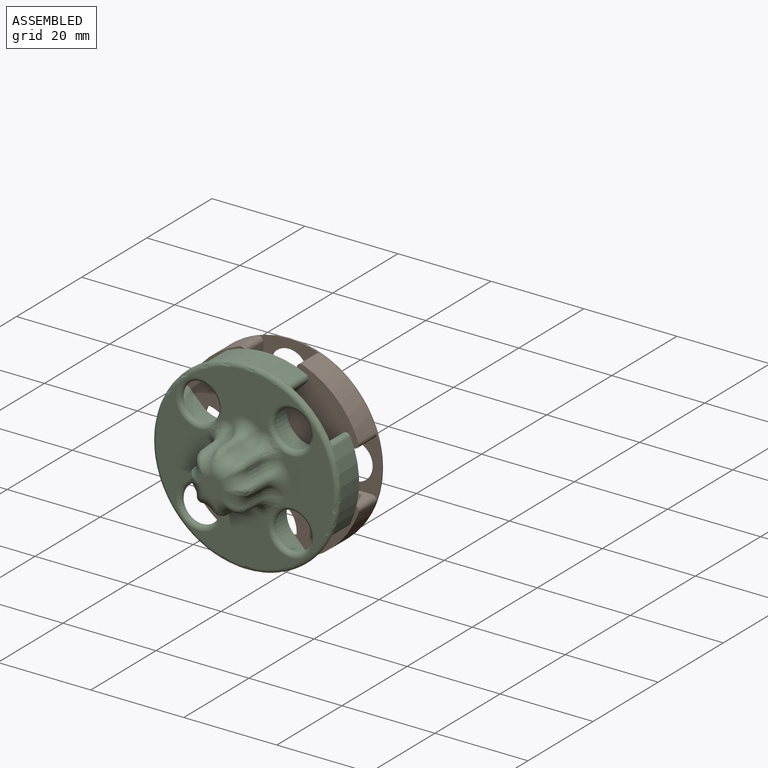
[diagram: assembled view]
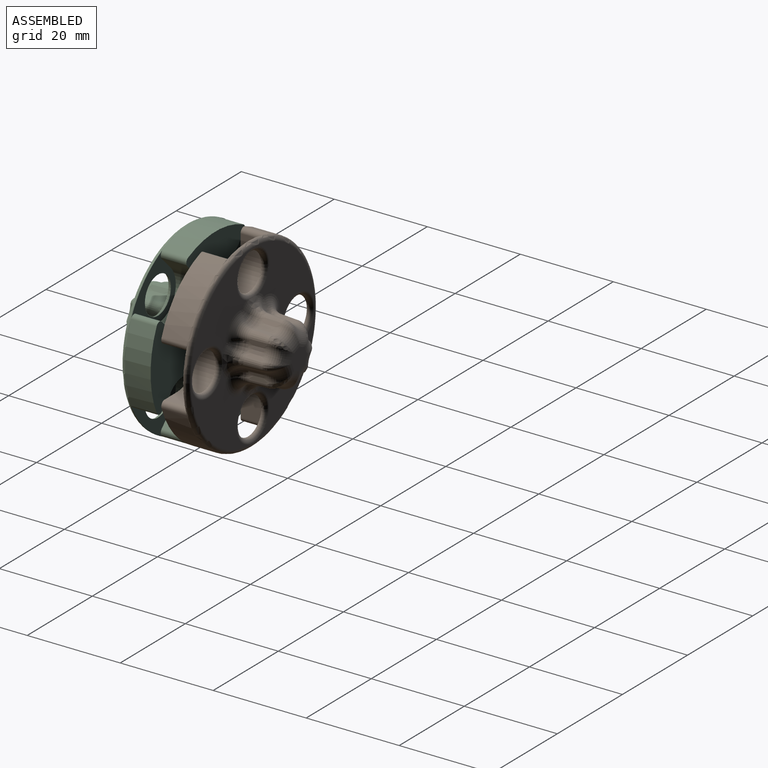
[diagram: assembled view, second angle]
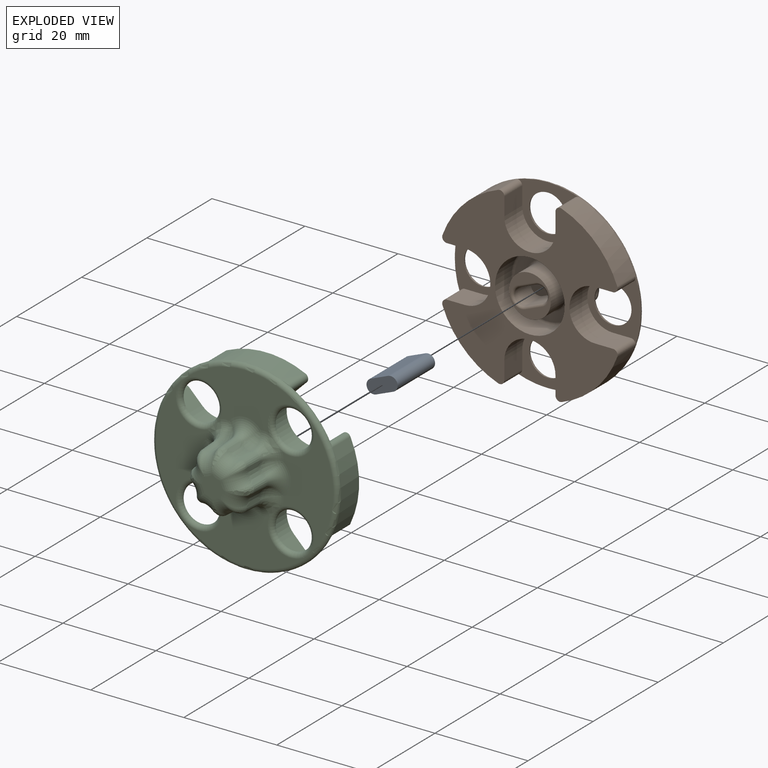
[diagram: exploded view]
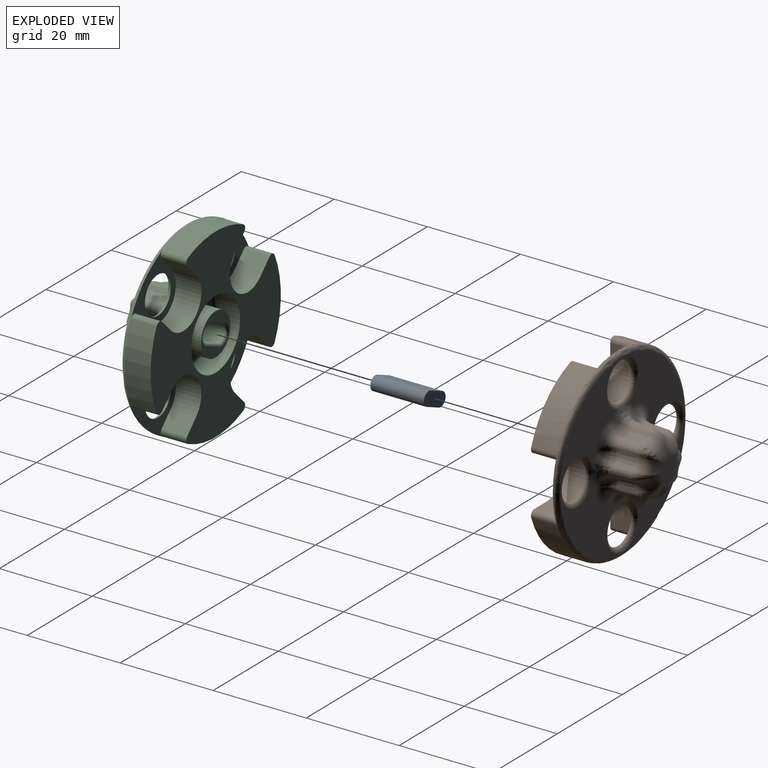
[diagram: exploded view, second angle]
ASSEMBLY  parts=3 mates=3
PART A: 6 faces, bbox 4.5x11.5x6.7 mm
  f0: plane 6.7x4.53mm, normal (0,-1,0), area 19.1mm2, adj f1,f2,f3,f4
  f1: plane 11.5x3.7mm, normal (-0.92,0,0.38), area 46mm2, adj f0,f2,f3,f5
  f2: cylinder r=1.5mm len=11.5mm, axis (0,1,0), area 54.2mm2, adj f0,f1,f4,f5
  f3: cylinder r=1.5mm len=11.5mm, axis (0,1,0), area 54.2mm2, adj f0,f1,f4,f5
  f4: plane 11.5x3.7mm, normal (0.92,0,-0.38), area 46mm2, adj f0,f2,f3,f5
  f5: plane 6.7x4.53mm, normal (0,1,0), area 19.1mm2, adj f1,f2,f3,f4
PART B: 109 faces, bbox 43.3x16.5x43.3 mm
  f0: plane 38.02x38.02mm, normal (0,-1,0), area 544mm2, adj f1,f48,f49,f50,f96,f97,f98,f99
  f1: torus R=4.39mm, axis (0,-1,0), area 5.2mm2, adj f0,f2,f46,f47
  f2: bspline ~3.03x2.86mm, area 5.2mm2, adj f1,f3,f48
  f3: cone r=2.36mm half-angle=3deg, axis (0,-1,0), area 11.4mm2, adj f2,f4,f45,f46
  f4: cone r=1.55mm half-angle=3deg, axis (0,1,0), area 9.6mm2, adj f3,f5,f43,f48
  f5: bspline ~3.38x3.37mm, area 4.6mm2, adj f4,f6,f45
  f6: torus R=6.21mm, axis (0,-1,0), area 14mm2, adj f5,f7,f42,f43
  f7: plane 4.83x4.83mm, normal (0,-1,0), area 15.8mm2, adj f6,f8,f36,f37,f38,f39,f41,f45
  f8: torus R=6.21mm, axis (0,-1,0), area 14mm2, adj f7,f9,f18,f19,f35
  f9: bspline ~3.02x2.67mm, area 3.8mm2, adj f8,f10,f41
  f10: cone r=1.55mm half-angle=3deg, axis (0,1,0), area 9.6mm2, adj f9,f11,f17,f19,f102,f104
  f11: cone r=2.36mm half-angle=3deg, axis (0,-1,0), area 11.4mm2, adj f10,f12,f13,f41
  f12: bspline ~3.03x2.86mm, area 5.2mm2, adj f11,f104,f105
  f13: cone r=1.55mm half-angle=3deg, axis (0,1,0), area 9.6mm2, adj f11,f14,f15,f105
  f14: bspline ~3.38x3.37mm, area 4.6mm2, adj f13,f39,f41
  f15: cone r=2.36mm half-angle=3deg, axis (0,-1,0), area 11.4mm2, adj f13,f16,f39,f46
  f16: bspline ~3.03x2.86mm, area 5.2mm2, adj f15,f105,f106
  f17: bspline ~4.88x3.08mm, area 9mm2, adj f10,f102,f103,f104
  f18: bspline ~2.03x0.58mm, area 0.1mm2, adj f8,f41
  f19: cone r=2.36mm half-angle=3deg, axis (0,-1,0), area 11.4mm2, adj f8,f10,f20,f34
  f20: cone r=1.55mm half-angle=3deg, axis (0,1,0), area 9.6mm2, adj f19,f21,f35,f101
  f21: cone r=2.36mm half-angle=3deg, axis (0,-1,0), area 11.4mm2, adj f20,f22,f33,f36
  f22: cone r=1.55mm half-angle=3deg, axis (0,1,0), area 9.6mm2, adj f21,f23,f24,f25,f98,f100
  f23: bspline ~4.27x3.32mm, area 5.2mm2, adj f22,f36,f37
  f24: bspline ~4.88x3.08mm, area 9mm2, adj f22,f98,f99,f100
  f25: cone r=2.36mm half-angle=3deg, axis (0,-1,0), area 11.4mm2, adj f22,f26,f32,f37
  f26: cone r=1.55mm half-angle=3deg, axis (0,1,0), area 9.6mm2, adj f25,f27,f28,f97
  f27: bspline ~3.38x3.37mm, area 4.6mm2, adj f26,f37,f38
  f28: cone r=2.36mm half-angle=3deg, axis (0,-1,0), area 11.4mm2, adj f26,f29,f31,f38
  f29: cone r=1.55mm half-angle=3deg, axis (0,1,0), area 9.6mm2, adj f28,f30,f42,f43,f49,f96
  f30: bspline ~4.88x3.08mm, area 9mm2, adj f29,f49,f50,f96
  f31: bspline ~3.03x2.86mm, area 5.2mm2, adj f28,f96,f97
  f32: bspline ~3.03x2.86mm, area 5.2mm2, adj f25,f97,f98
  f33: bspline ~3.03x2.86mm, area 5.2mm2, adj f21,f100,f101
  f34: bspline ~3.03x2.86mm, area 5.2mm2, adj f19,f101,f102
  f35: bspline ~3.38x3.37mm, area 4.6mm2, adj f8,f20,f36
  f36: torus R=6.21mm, axis (0,-1,0), area 14mm2, adj f7,f21,f23,f35
  f37: torus R=6.21mm, axis (0,-1,0), area 14mm2, adj f7,f23,f25,f27
  f38: torus R=6.21mm, axis (0,-1,0), area 14mm2, adj f7,f27,f28,f42
  f39: torus R=6.21mm, axis (0,-1,0), area 14mm2, adj f7,f14,f15,f40
  f40: bspline ~4.27x3.32mm, area 5.5mm2, adj f39,f45,f46
  f41: torus R=6.21mm, axis (0,-1,0), area 14mm2, adj f7,f9,f11,f14,f18
  f42: bspline ~4.27x3.32mm, area 5.4mm2, adj f6,f29,f38
  f43: cone r=2.36mm half-angle=3deg, axis (0,-1,0), area 11.4mm2, adj f4,f6,f29,f44
  f44: bspline ~3.03x2.86mm, area 5.2mm2, adj f43,f48,f49
  f45: torus R=6.21mm, axis (0,-1,0), area 14mm2, adj f3,f5,f7,f40
  f46: cone r=1.55mm half-angle=3deg, axis (0,1,0), area 9.6mm2, adj f1,f3,f15,f40,f47,f106
  f47: bspline ~4.88x3.08mm, area 9mm2, adj f1,f46,f106,f107
  f48: torus R=4.39mm, axis (0,-1,0), area 21.1mm2, adj f0,f2,f4,f44
  f49: torus R=4.39mm, axis (0,-1,0), area 5.2mm2, adj f0,f29,f30,f44
  f50: torus R=4.99mm, axis (0,-1,0), area 42.2mm2, adj f0,f30,f51
  f51: cylinder r=4mm len=8mm, axis (0,1,0), area 0.3mm2, adj f50,f52
  f52: plane 13.66x11.5mm, normal (0,1,0), area 61.3mm2, adj f51,f53,f91,f92,f93,f94,f95
  f53: cylinder r=0.99mm len=5.5mm, axis (0,1,0), area 10.5mm2, adj f52,f54,f91,f95
  f54: plane 37.72x37.72mm, normal (0,1,0), area 633.6mm2, adj f53,f55,f58,f59,f60,f61,f62,f65
  f55: cylinder r=0.99mm len=5.5mm, axis (0,1,0), area 10.5mm2, adj f54,f56,f58,f95
  f56: plane 13.66x11.5mm, normal (0,1,0), area 61.3mm2, adj f55,f57,f58,f59,f60,f61,f95
  f57: cylinder r=4mm len=8mm, axis (0,1,0), area 0.3mm2, adj f56,f99
  f58: plane 5.5x3.87mm, normal (0,0,-1), area 21.3mm2, adj f54,f55,f56,f59
  f59: cylinder r=5.5mm len=11mm, axis (0,1,0), area 95mm2, adj f54,f56,f58,f60
  f60: plane 5.5x3.87mm, normal (0,0,1), area 21.3mm2, adj f54,f56,f59,f61
  f61: cylinder r=0.99mm len=5.5mm, axis (0,1,0), area 10.5mm2, adj f54,f56,f60,f95
  f62: cylinder r=0.99mm len=5.5mm, axis (0,1,0), area 10.5mm2, adj f54,f63,f65,f95
  f63: plane 13.66x11.5mm, normal (0,1,0), area 61.3mm2, adj f62,f64,f65,f66,f67,f68,f95
  f64: cylinder r=4mm len=8mm, axis (0,1,0), area 0.3mm2, adj f63,f103
  f65: plane 5.5x3.87mm, normal (1,0,0), area 21.3mm2, adj f54,f62,f63,f66
  f66: cylinder r=5.5mm len=11mm, axis (0,1,0), area 95mm2, adj f54,f63,f65,f67
  f67: plane 5.5x3.87mm, normal (-1,0,0), area 21.3mm2, adj f54,f63,f66,f68
  f68: cylinder r=0.99mm len=5.5mm, axis (0,1,0), area 10.5mm2, adj f54,f63,f67,f95
  f69: cylinder r=0.99mm len=5.5mm, axis (0,1,0), area 10.5mm2, adj f54,f70,f72,f95
  f70: plane 13.66x11.5mm, normal (0,1,0), area 61.3mm2, adj f69,f71,f72,f73,f74,f75,f95
  f71: cylinder r=4mm len=8mm, axis (0,1,0), area 0.3mm2, adj f70,f107
  f72: plane 5.5x3.87mm, normal (0,0,1), area 21.3mm2, adj f54,f69,f70,f73
  f73: cylinder r=5.5mm len=11mm, axis (0,1,0), area 95mm2, adj f54,f70,f72,f74
  f74: plane 5.5x3.87mm, normal (0,0,-1), area 21.3mm2, adj f54,f70,f73,f75
  f75: cylinder r=0.99mm len=5.5mm, axis (0,1,0), area 10.5mm2, adj f54,f70,f74,f95
  f76: cylinder r=7.5mm len=15mm, axis (0,1,0), area 235.6mm2, adj f54,f77
  f77: torus R=7mm, axis (0,1,0), area 36.1mm2, adj f76,f78
  f78: plane 14x14mm, normal (0,1,0), area 75.4mm2, adj f77,f79
  f79: torus R=5mm, axis (0,1,0), area 23.1mm2, adj f78,f80
  f80: cylinder r=4.5mm len=9mm, axis (0,1,0), area 141.4mm2, adj f79,f81
  f81: plane 9x9mm, normal (0,1,0), area 28.6mm2, adj f80,f82,f88,f89,f90
  f82: torus R=2.3mm, axis (0,-1,0), area 4.9mm2, adj f81,f83,f88,f90
  f83: cylinder r=1.8mm len=5mm, axis (0,1,0), area 28.3mm2, adj f82,f84,f86,f87
  f84: plane 5x3.7mm, normal (0.92,0,-0.38), area 20mm2, adj f83,f85,f87,f90
  f85: cylinder r=1.8mm len=5mm, axis (0,1,0), area 28.3mm2, adj f84,f86,f87,f89
  f86: plane 5x3.7mm, normal (-0.92,0,0.38), area 20mm2, adj f83,f85,f87,f88
  f87: plane 7.3x5.13mm, normal (0,1,0), area 24.6mm2, adj f83,f84,f85,f86
  f88: cylinder r=0.5mm len=3.89mm, axis (-0.38,0,-0.92), area 3.1mm2, adj f81,f82,f86,f89
  f89: torus R=2.3mm, axis (0,-1,0), area 4.9mm2, adj f81,f85,f88,f90
  f90: cylinder r=0.5mm len=3.89mm, axis (0.38,0,0.92), area 3.1mm2, adj f81,f82,f84,f89
  f91: plane 5.5x3.87mm, normal (1,0,0), area 21.3mm2, adj f52,f53,f54,f92
  f92: cylinder r=5.5mm len=11mm, axis (0,1,0), area 95mm2, adj f52,f54,f91,f93
  f93: plane 5.5x3.87mm, normal (-1,0,0), area 21.3mm2, adj f52,f54,f92,f94
  f94: cylinder r=0.99mm len=5.5mm, axis (0,1,0), area 10.5mm2, adj f52,f54,f93,f95
  f95: cylinder r=20mm len=40mm, axis (0,1,0), area 385.8mm2, adj f52,f53,f54,f55,f56,f61,f62,f63
  f96: torus R=4.39mm, axis (0,-1,0), area 5.2mm2, adj f0,f29,f30,f31
  f97: torus R=4.39mm, axis (0,-1,0), area 21.1mm2, adj f0,f26,f31,f32
  f98: torus R=4.39mm, axis (0,-1,0), area 5.2mm2, adj f0,f22,f24,f32
  f99: torus R=4.99mm, axis (0,-1,0), area 42mm2, adj f0,f24,f57
  f100: torus R=4.39mm, axis (0,-1,0), area 5.2mm2, adj f0,f22,f24,f33
  f101: torus R=4.39mm, axis (0,-1,0), area 21.1mm2, adj f0,f20,f33,f34
  f102: torus R=4.39mm, axis (0,-1,0), area 5.2mm2, adj f0,f10,f17,f34
  f103: torus R=4.99mm, axis (0,-1,0), area 42mm2, adj f0,f17,f64
  f104: torus R=4.39mm, axis (0,-1,0), area 5.2mm2, adj f0,f10,f12,f17
  f105: torus R=4.39mm, axis (0,-1,0), area 21.1mm2, adj f0,f12,f13,f16
  f106: torus R=4.39mm, axis (0,-1,0), area 5.2mm2, adj f0,f16,f46,f47
  f107: torus R=4.99mm, axis (0,-1,0), area 42mm2, adj f0,f47,f71
  f108: torus R=19.01mm, axis (0,-1,0), area 191.9mm2, adj f0,f95
PART C: same geometry as B
PLACE A rot(axis=(0,-1,0),135deg) t=(-25.02,0.52,73.56)mm
PLACE B rot(axis=(0.71,0,-0.71),180deg) t=(-25.02,2.52,73.56)mm
PLACE C rot(axis=(0,1,0),45deg) t=(-25.02,1.02,73.56)mm
MATE cylindrical B.f76 <-> A.f5  axis (0,-1,0) through (-25.02,8.02,73.56)mm
MATE fastened A.f0 <-> C.f76  axis (0,-1,0) through (-25.02,-4.48,73.56)mm
MATE parallel A.f4 <-> B.f84  axis (-0.38,0,0.92) through (-25.59,1.27,74.94)mm
